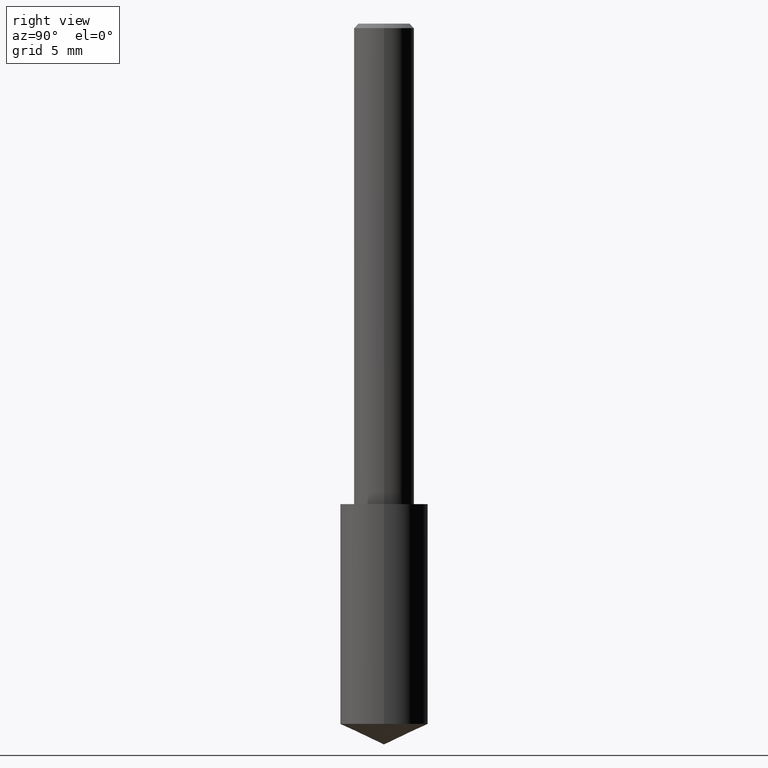
[diagram: clean part render]
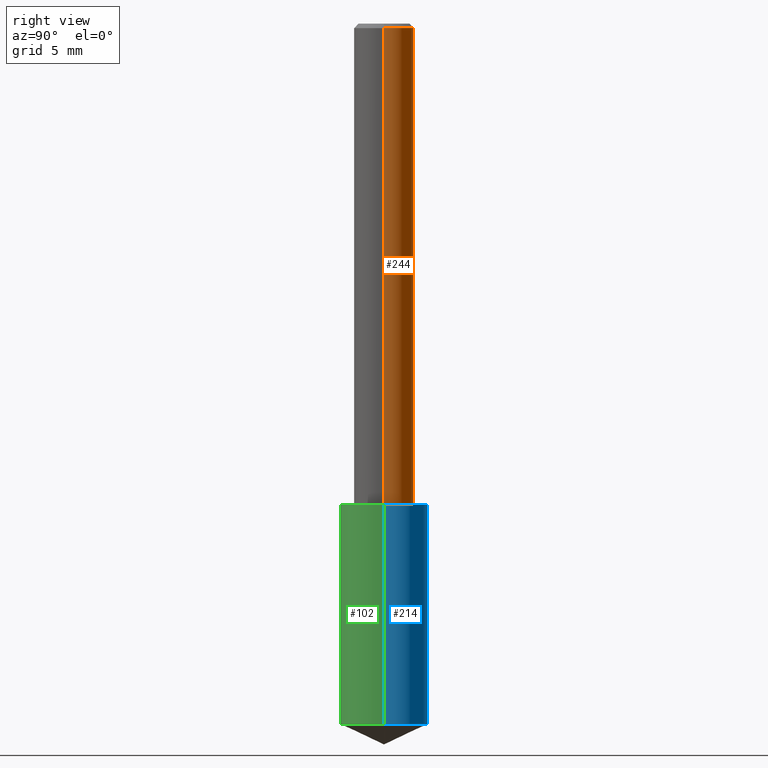
[diagram: same view with three faces highlighted in distinct colors, each labeled with its STEP entity id]
A machine part, right view with three faces highlighted in distinct colors.
Their STEP definitions:

[orange] entity #244 — the highlighted cylindrical surface (edge-blend (fillet) strip) has radius 1.5875 mm, axis along (-0, 0, 1).
#20 = CARTESIAN_POINT ( 'NONE',  ( -0.06250000000000006939, 4.440892098500631092E-16, -3.074334431409319267E-30 ) ) ;
#22 = EDGE_CURVE ( 'NONE', #74, #239, #26, .T. ) ;
#26 = CIRCLE ( 'NONE', #324, 0.06250000000000000000 ) ;
#34 = AXIS2_PLACEMENT_3D ( 'NONE', #330, #160, #63 ) ;
#53 = VERTEX_POINT ( 'NONE', #203 ) ;
#59 = DIRECTION ( 'NONE',  ( -2.445468806185136877E-29, 3.491481338843145188E-15, 1.000000000000000000 ) ) ;
#63 = DIRECTION ( 'NONE',  ( 1.000000000000000000, -6.982962677686264344E-15, 0.000000000000000000 ) ) ;
#65 = CARTESIAN_POINT ( 'NONE',  ( -0.06250000000000000000, -1.318017778347336672E-15, -0.009375000000000060368 ) ) ;
#74 = VERTEX_POINT ( 'NONE', #176 ) ;
#98 = VECTOR ( 'NONE', #248, 39.37007874015748143 ) ;
#99 = DIRECTION ( 'NONE',  ( -2.445468806185136597E-29, 3.491481338843145583E-15, 1.000000000000000000 ) ) ;
#103 = EDGE_LOOP ( 'NONE', ( #111, #231, #251, #263 ) ) ;
#111 = ORIENTED_EDGE ( 'NONE', *, *, #184, .T. ) ;
#160 = DIRECTION ( 'NONE',  ( -2.445468806185136597E-29, 3.491481338843145583E-15, 1.000000000000000000 ) ) ;
#161 = CARTESIAN_POINT ( 'NONE',  ( 2.292627005798580623E-31, -3.273263755165470184E-17, -0.009375000000000060368 ) ) ;
#162 = FACE_OUTER_BOUND ( 'NONE', #103, .T. ) ;
#165 = CARTESIAN_POINT ( 'NONE',  ( 0.000000000000000000, 0.000000000000000000, 0.000000000000000000 ) ) ;
#172 = VECTOR ( 'NONE', #59, 39.37007874015748143 ) ;
#176 = CARTESIAN_POINT ( 'NONE',  ( 0.06250000000000000000, -4.691678049070463404E-16, -0.009375000000000060368 ) ) ;
#179 = LINE ( 'NONE', #287, #172 ) ;
#184 = EDGE_CURVE ( 'NONE', #53, #186, #331, .T. ) ;
#186 = VERTEX_POINT ( 'NONE', #201 ) ;
#201 = CARTESIAN_POINT ( 'NONE',  ( -0.06250000000000012490, -1.318017778347335489E-15, -1.000000000000000222 ) ) ;
#203 = CARTESIAN_POINT ( 'NONE',  ( 0.06250000000000012490, -3.927916506198539224E-15, -1.000000000000000222 ) ) ;
#231 = ORIENTED_EDGE ( 'NONE', *, *, #268, .T. ) ;
#239 = VERTEX_POINT ( 'NONE', #65 ) ;
#244 = ADVANCED_FACE ( 'NONE', ( #162 ), #270, .T. ) ;
#248 = DIRECTION ( 'NONE',  ( -2.445468806185136877E-29, 3.491481338843145188E-15, 1.000000000000000000 ) ) ;
#251 = ORIENTED_EDGE ( 'NONE', *, *, #22, .F. ) ;
#263 = ORIENTED_EDGE ( 'NONE', *, *, #334, .F. ) ;
#268 = EDGE_CURVE ( 'NONE', #186, #239, #281, .T. ) ;
#270 = CYLINDRICAL_SURFACE ( 'NONE', #295, 0.06250000000000006939 ) ;
#272 = DIRECTION ( 'NONE',  ( -2.445468806185136597E-29, 3.491481338843145583E-15, 1.000000000000000000 ) ) ;
#276 = DIRECTION ( 'NONE',  ( 1.000000000000000000, -6.982962677686266711E-15, 4.876176775795935793E-29 ) ) ;
#281 = LINE ( 'NONE', #20, #98 ) ;
#287 = CARTESIAN_POINT ( 'NONE',  ( 0.06250000000000006939, -4.364351673553921624E-16, 3.047610484872463374E-30 ) ) ;
#295 = AXIS2_PLACEMENT_3D ( 'NONE', #165, #272, #276 ) ;
#301 = DIRECTION ( 'NONE',  ( 1.000000000000000000, -6.982962677686266711E-15, 0.000000000000000000 ) ) ;
#324 = AXIS2_PLACEMENT_3D ( 'NONE', #161, #99, #301 ) ;
#330 = CARTESIAN_POINT ( 'NONE',  ( 2.445468806185137438E-29, -3.491481338843146371E-15, -1.000000000000000222 ) ) ;
#331 = CIRCLE ( 'NONE', #34, 0.06250000000000012490 ) ;
#334 = EDGE_CURVE ( 'NONE', #53, #74, #179, .T. ) ;

[blue] entity #214 — the highlighted cylindrical surface (partial cylindrical patch) has radius 2.3254 mm, axis along (-0, 0, 1).
#11 = DIRECTION ( 'NONE',  ( -2.445468806185136877E-29, 3.491481338843145188E-15, 1.000000000000000000 ) ) ;
#12 = AXIS2_PLACEMENT_3D ( 'NONE', #140, #136, #247 ) ;
#13 = DIRECTION ( 'NONE',  ( 1.000000000000000000, -6.982962677686266711E-15, 0.000000000000000000 ) ) ;
#15 = DIRECTION ( 'NONE',  ( -2.445468806185136597E-29, 3.491481338843145583E-15, 1.000000000000000000 ) ) ;
#17 = VECTOR ( 'NONE', #11, 39.37007874015748143 ) ;
#24 = DIRECTION ( 'NONE',  ( 1.000000000000000000, -6.982962677686266711E-15, 0.000000000000000000 ) ) ;
#36 = FACE_OUTER_BOUND ( 'NONE', #85, .T. ) ;
#41 = CARTESIAN_POINT ( 'NONE',  ( -0.09154999999999999249, -4.437667167927400404E-15, -1.457309533895910114 ) ) ;
#58 = ORIENTED_EDGE ( 'NONE', *, *, #222, .F. ) ;
#68 = EDGE_CURVE ( 'NONE', #282, #216, #118, .T. ) ;
#85 = EDGE_LOOP ( 'NONE', ( #315, #306, #58, #288 ) ) ;
#90 = EDGE_CURVE ( 'NONE', #236, #282, #164, .T. ) ;
#91 = CARTESIAN_POINT ( 'NONE',  ( 0.09154999999999999249, -5.727459275657949752E-15, -1.457309533895910114 ) ) ;
#92 = AXIS2_PLACEMENT_3D ( 'NONE', #218, #15, #13 ) ;
#97 = CARTESIAN_POINT ( 'NONE',  ( 0.09155000000000000637, -4.130771571985324250E-15, -1.000000000000000222 ) ) ;
#106 = CIRCLE ( 'NONE', #92, 0.09155000000000000637 ) ;
#118 = LINE ( 'NONE', #332, #17 ) ;
#136 = DIRECTION ( 'NONE',  ( -2.445468806185136597E-29, 3.491481338843145583E-15, 1.000000000000000000 ) ) ;
#140 = CARTESIAN_POINT ( 'NONE',  ( 2.445468806185137438E-29, -3.491481338843146371E-15, -1.000000000000000222 ) ) ;
#146 = CARTESIAN_POINT ( 'NONE',  ( 3.563805006098649233E-29, -5.088169042515772268E-15, -1.457309533895910114 ) ) ;
#152 = VERTEX_POINT ( 'NONE', #327 ) ;
#164 = CIRCLE ( 'NONE', #171, 0.09155000000000000637 ) ;
#171 = AXIS2_PLACEMENT_3D ( 'NONE', #146, #253, #24 ) ;
#214 = ADVANCED_FACE ( 'NONE', ( #36 ), #302, .T. ) ;
#216 = VERTEX_POINT ( 'NONE', #329 ) ;
#218 = CARTESIAN_POINT ( 'NONE',  ( 2.445468806185136877E-29, -3.491481338843145977E-15, -1.000000000000000222 ) ) ;
#222 = EDGE_CURVE ( 'NONE', #152, #216, #106, .T. ) ;
#224 = LINE ( 'NONE', #97, #242 ) ;
#236 = VERTEX_POINT ( 'NONE', #91 ) ;
#242 = VECTOR ( 'NONE', #311, 39.37007874015748143 ) ;
#247 = DIRECTION ( 'NONE',  ( 1.000000000000000000, -6.982962677686266711E-15, 0.000000000000000000 ) ) ;
#253 = DIRECTION ( 'NONE',  ( -2.445468806185136597E-29, 3.491481338843145583E-15, 1.000000000000000000 ) ) ;
#260 = EDGE_CURVE ( 'NONE', #236, #152, #224, .T. ) ;
#282 = VERTEX_POINT ( 'NONE', #41 ) ;
#288 = ORIENTED_EDGE ( 'NONE', *, *, #260, .F. ) ;
#302 = CYLINDRICAL_SURFACE ( 'NONE', #12, 0.09155000000000000637 ) ;
#306 = ORIENTED_EDGE ( 'NONE', *, *, #68, .T. ) ;
#311 = DIRECTION ( 'NONE',  ( -2.445468806185136877E-29, 3.491481338843145188E-15, 1.000000000000000000 ) ) ;
#315 = ORIENTED_EDGE ( 'NONE', *, *, #90, .T. ) ;
#327 = CARTESIAN_POINT ( 'NONE',  ( 0.09155000000000000637, -4.130771571985323461E-15, -1.000000000000000222 ) ) ;
#329 = CARTESIAN_POINT ( 'NONE',  ( -0.09155000000000000637, -3.639323316091087258E-15, -1.000000000000000222 ) ) ;
#332 = CARTESIAN_POINT ( 'NONE',  ( -0.09155000000000000637, -2.840979464254774902E-15, -1.000000000000000222 ) ) ;

[green] entity #102 — the highlighted cylindrical surface (partial cylindrical patch) has radius 2.3254 mm, axis along (-0, 0, 1).
#2 = EDGE_LOOP ( 'NONE', ( #256, #150, #105, #294 ) ) ;
#11 = DIRECTION ( 'NONE',  ( -2.445468806185136877E-29, 3.491481338843145188E-15, 1.000000000000000000 ) ) ;
#17 = VECTOR ( 'NONE', #11, 39.37007874015748143 ) ;
#18 = DIRECTION ( 'NONE',  ( 1.000000000000000000, -6.982962677686266711E-15, 0.000000000000000000 ) ) ;
#19 = EDGE_CURVE ( 'NONE', #216, #152, #87, .T. ) ;
#41 = CARTESIAN_POINT ( 'NONE',  ( -0.09154999999999999249, -4.437667167927400404E-15, -1.457309533895910114 ) ) ;
#49 = AXIS2_PLACEMENT_3D ( 'NONE', #321, #318, #89 ) ;
#62 = CARTESIAN_POINT ( 'NONE',  ( 2.445468806185136877E-29, -3.491481338843145977E-15, -1.000000000000000222 ) ) ;
#68 = EDGE_CURVE ( 'NONE', #282, #216, #118, .T. ) ;
#87 = CIRCLE ( 'NONE', #153, 0.09155000000000000637 ) ;
#89 = DIRECTION ( 'NONE',  ( 1.000000000000000000, -6.982962677686266711E-15, 0.000000000000000000 ) ) ;
#91 = CARTESIAN_POINT ( 'NONE',  ( 0.09154999999999999249, -5.727459275657949752E-15, -1.457309533895910114 ) ) ;
#97 = CARTESIAN_POINT ( 'NONE',  ( 0.09155000000000000637, -4.130771571985324250E-15, -1.000000000000000222 ) ) ;
#102 = ADVANCED_FACE ( 'NONE', ( #228 ), #129, .T. ) ;
#105 = ORIENTED_EDGE ( 'NONE', *, *, #260, .T. ) ;
#115 = DIRECTION ( 'NONE',  ( -2.445468806185136597E-29, 3.491481338843145583E-15, 1.000000000000000000 ) ) ;
#118 = LINE ( 'NONE', #332, #17 ) ;
#129 = CYLINDRICAL_SURFACE ( 'NONE', #49, 0.09155000000000000637 ) ;
#141 = DIRECTION ( 'NONE',  ( -2.445468806185136597E-29, 3.491481338843145583E-15, 1.000000000000000000 ) ) ;
#150 = ORIENTED_EDGE ( 'NONE', *, *, #182, .T. ) ;
#152 = VERTEX_POINT ( 'NONE', #327 ) ;
#153 = AXIS2_PLACEMENT_3D ( 'NONE', #62, #141, #18 ) ;
#182 = EDGE_CURVE ( 'NONE', #282, #236, #309, .T. ) ;
#211 = AXIS2_PLACEMENT_3D ( 'NONE', #219, #115, #241 ) ;
#216 = VERTEX_POINT ( 'NONE', #329 ) ;
#219 = CARTESIAN_POINT ( 'NONE',  ( 3.563805006098649233E-29, -5.088169042515772268E-15, -1.457309533895910114 ) ) ;
#224 = LINE ( 'NONE', #97, #242 ) ;
#228 = FACE_OUTER_BOUND ( 'NONE', #2, .T. ) ;
#236 = VERTEX_POINT ( 'NONE', #91 ) ;
#241 = DIRECTION ( 'NONE',  ( 1.000000000000000000, -6.982962677686266711E-15, 0.000000000000000000 ) ) ;
#242 = VECTOR ( 'NONE', #311, 39.37007874015748143 ) ;
#256 = ORIENTED_EDGE ( 'NONE', *, *, #68, .F. ) ;
#260 = EDGE_CURVE ( 'NONE', #236, #152, #224, .T. ) ;
#282 = VERTEX_POINT ( 'NONE', #41 ) ;
#294 = ORIENTED_EDGE ( 'NONE', *, *, #19, .F. ) ;
#309 = CIRCLE ( 'NONE', #211, 0.09155000000000000637 ) ;
#311 = DIRECTION ( 'NONE',  ( -2.445468806185136877E-29, 3.491481338843145188E-15, 1.000000000000000000 ) ) ;
#318 = DIRECTION ( 'NONE',  ( -2.445468806185136597E-29, 3.491481338843145583E-15, 1.000000000000000000 ) ) ;
#321 = CARTESIAN_POINT ( 'NONE',  ( 2.445468806185137438E-29, -3.491481338843146371E-15, -1.000000000000000222 ) ) ;
#327 = CARTESIAN_POINT ( 'NONE',  ( 0.09155000000000000637, -4.130771571985323461E-15, -1.000000000000000222 ) ) ;
#329 = CARTESIAN_POINT ( 'NONE',  ( -0.09155000000000000637, -3.639323316091087258E-15, -1.000000000000000222 ) ) ;
#332 = CARTESIAN_POINT ( 'NONE',  ( -0.09155000000000000637, -2.840979464254774902E-15, -1.000000000000000222 ) ) ;